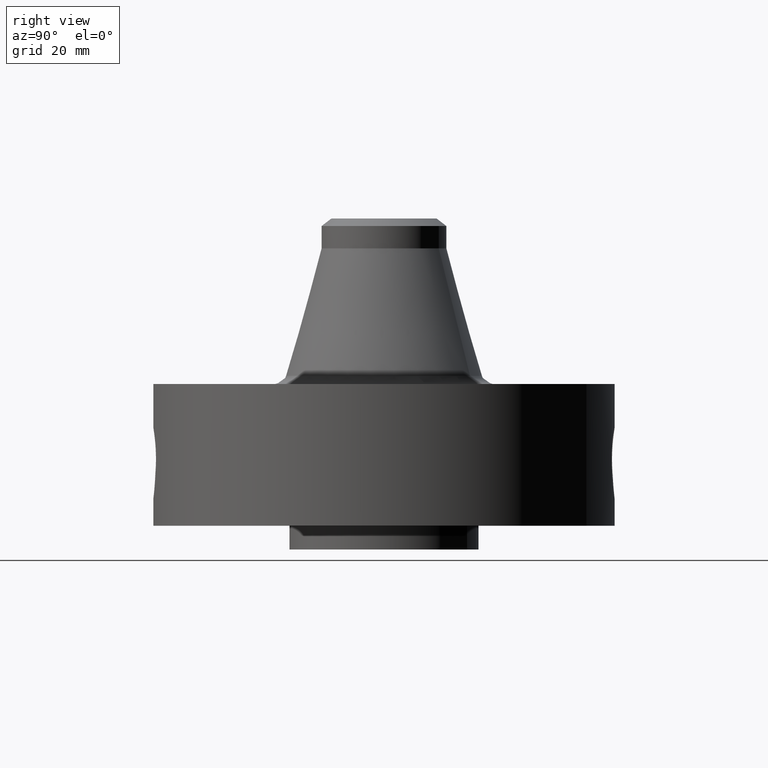
[diagram: clean part render]
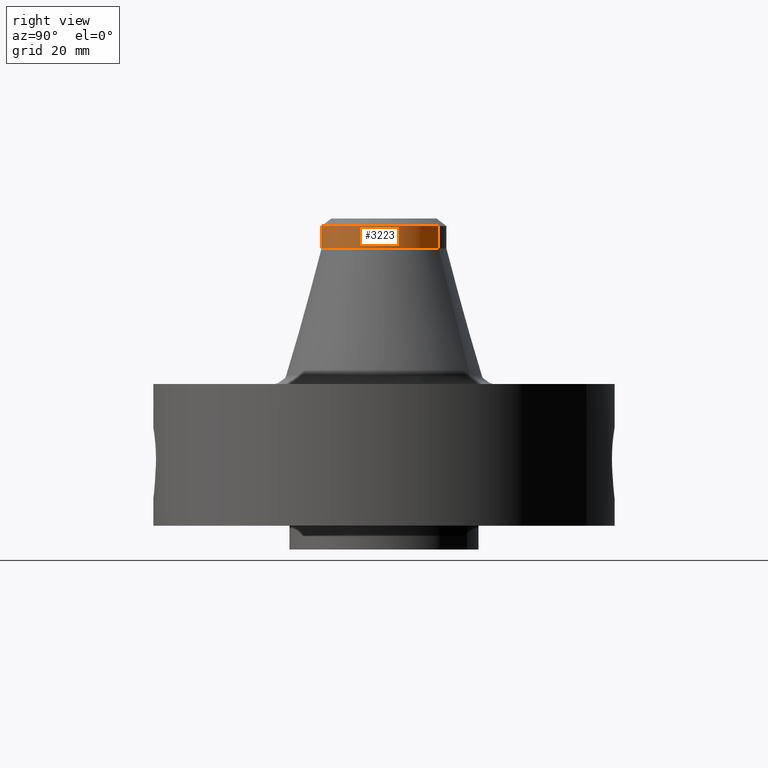
[diagram: same view with one face highlighted and labeled with its STEP entity id]
A machine part, right view. The second image highlights one B-rep face of the part: STEP entity #3223.
In plain terms, the highlighted cylindrical surface (partial cylindrical patch) has radius 16.764 mm, axis along (0, 0, -1).
Its self-contained STEP definition (entity closure, byte-faithful):
#2352=AXIS2_PLACEMENT_3D('Circle Axis2P3D',#2350,#2351,$) ;
#3188=AXIS2_PLACEMENT_3D('Cylinder Axis2P3D',#3185,#3186,#3187) ;
#3206=AXIS2_PLACEMENT_3D('Circle Axis2P3D',#3204,#3205,$) ;
#3213=AXIS2_PLACEMENT_3D('Circle Axis2P3D',#3211,#3212,$) ;
#2347=CARTESIAN_POINT('Vertex',(0.31642085548,0.57920449085,3.18492912713)) ;
#2350=CARTESIAN_POINT('Axis2P3D Location',(0.,0.,3.18492912713)) ;
#2354=CARTESIAN_POINT('Vertex',(-0.31642085548,-0.57920449085,3.18492912713)) ;
#3185=CARTESIAN_POINT('Axis2P3D Location',(0.,0.,1.75000000001)) ;
#3190=CARTESIAN_POINT('Line Origine',(-0.31642085548,-0.57920449085,3.30303936335)) ;
#3194=CARTESIAN_POINT('Vertex',(-0.31642085548,-0.57920449085,3.42114959957)) ;
#3197=CARTESIAN_POINT('Line Origine',(0.31642085548,0.57920449085,3.30303936335)) ;
#3201=CARTESIAN_POINT('Vertex',(0.31642085548,0.57920449085,3.42114959957)) ;
#3204=CARTESIAN_POINT('Axis2P3D Location',(0.,0.,3.42114959957)) ;
#3208=CARTESIAN_POINT('Vertex',(0.31642085548,-0.57920449085,3.42114959957)) ;
#3211=CARTESIAN_POINT('Axis2P3D Location',(0.,0.,3.42114959957)) ;
#2351=DIRECTION('Axis2P3D Direction',(0.,0.,-0.0393700787402)) ;
#3186=DIRECTION('Axis2P3D Direction',(0.,0.,-0.0393700787402)) ;
#3187=DIRECTION('Axis2P3D XDirection',(-0.0188750212049,-0.0345504945626,0.)) ;
#3191=DIRECTION('Vector Direction',(0.,0.,-0.0393700787402)) ;
#3198=DIRECTION('Vector Direction',(0.,0.,-0.0393700787402)) ;
#3205=DIRECTION('Axis2P3D Direction',(0.,0.,-0.0393700787402)) ;
#3212=DIRECTION('Axis2P3D Direction',(0.,0.,-0.0393700787402)) ;
#3192=VECTOR('Line Direction',#3191,0.0393700787402) ;
#3199=VECTOR('Line Direction',#3198,0.0393700787402) ;
#3217=ORIENTED_EDGE('',*,*,#3196,.F.) ;
#3218=ORIENTED_EDGE('',*,*,#2356,.F.) ;
#3219=ORIENTED_EDGE('',*,*,#3203,.T.) ;
#3220=ORIENTED_EDGE('',*,*,#3210,.F.) ;
#3221=ORIENTED_EDGE('',*,*,#3215,.T.) ;
#3223=ADVANCED_FACE('PartBody',(#3222),#3189,.T.) ;
#2353=CIRCLE('generated circle',#2352,0.660000000003) ;
#3207=CIRCLE('generated circle',#3206,0.660000000003) ;
#3214=CIRCLE('generated circle',#3213,0.660000000003) ;
#3189=CYLINDRICAL_SURFACE('generated cylinder',#3188,0.660000000003) ;
#2356=EDGE_CURVE('',#2348,#2355,#2353,.T.) ;
#3196=EDGE_CURVE('',#2355,#3195,#3193,.F.) ;
#3203=EDGE_CURVE('',#2348,#3202,#3200,.F.) ;
#3210=EDGE_CURVE('',#3209,#3202,#3207,.F.) ;
#3215=EDGE_CURVE('',#3209,#3195,#3214,.T.) ;
#3216=EDGE_LOOP('',(#3217,#3218,#3219,#3220,#3221)) ;
#3222=FACE_OUTER_BOUND('',#3216,.T.) ;
#3193=LINE('Line',#3190,#3192) ;
#3200=LINE('Line',#3197,#3199) ;
#2348=VERTEX_POINT('',#2347) ;
#2355=VERTEX_POINT('',#2354) ;
#3195=VERTEX_POINT('',#3194) ;
#3202=VERTEX_POINT('',#3201) ;
#3209=VERTEX_POINT('',#3208) ;